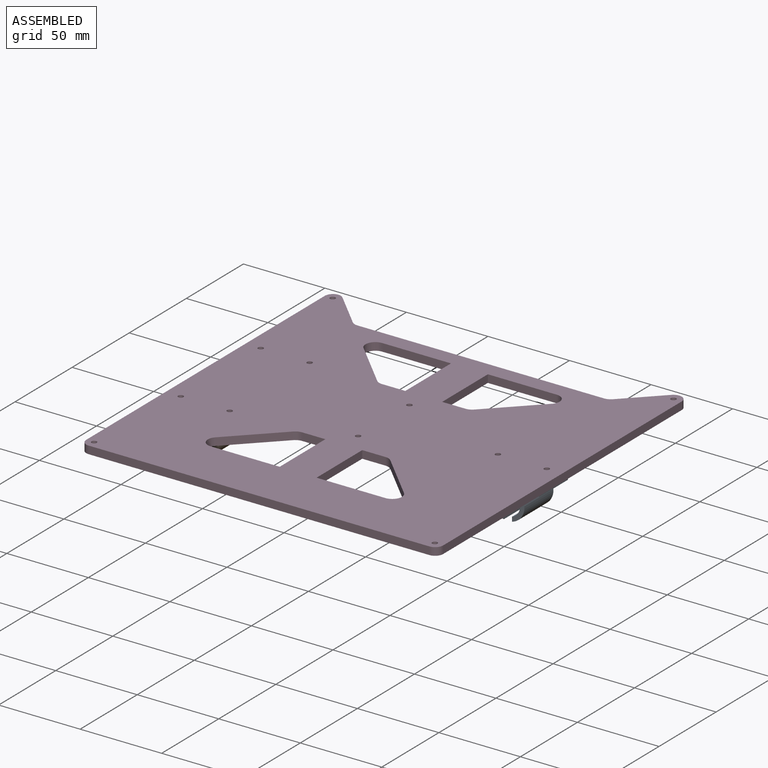
[diagram: assembled view]
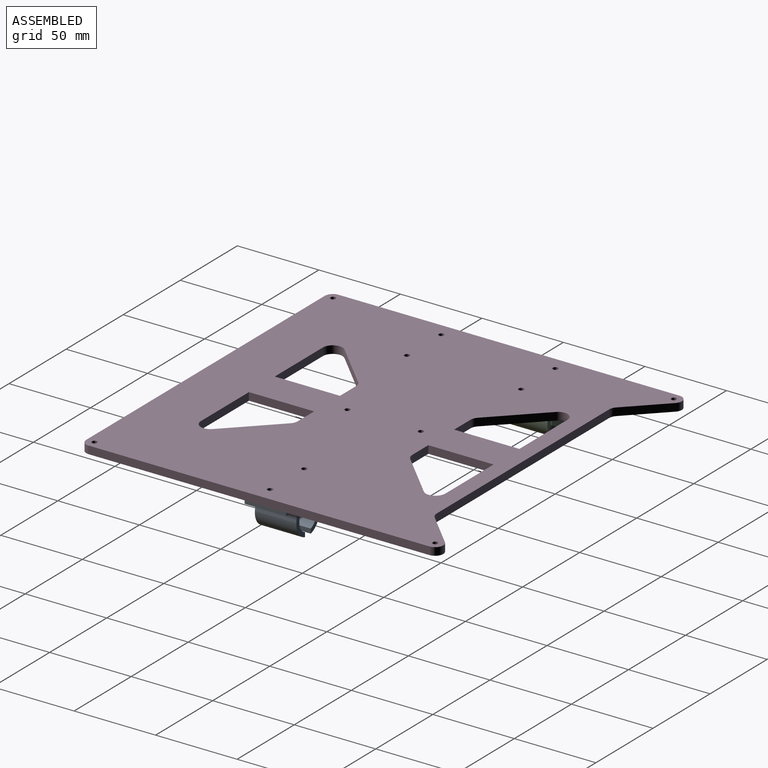
[diagram: assembled view, second angle]
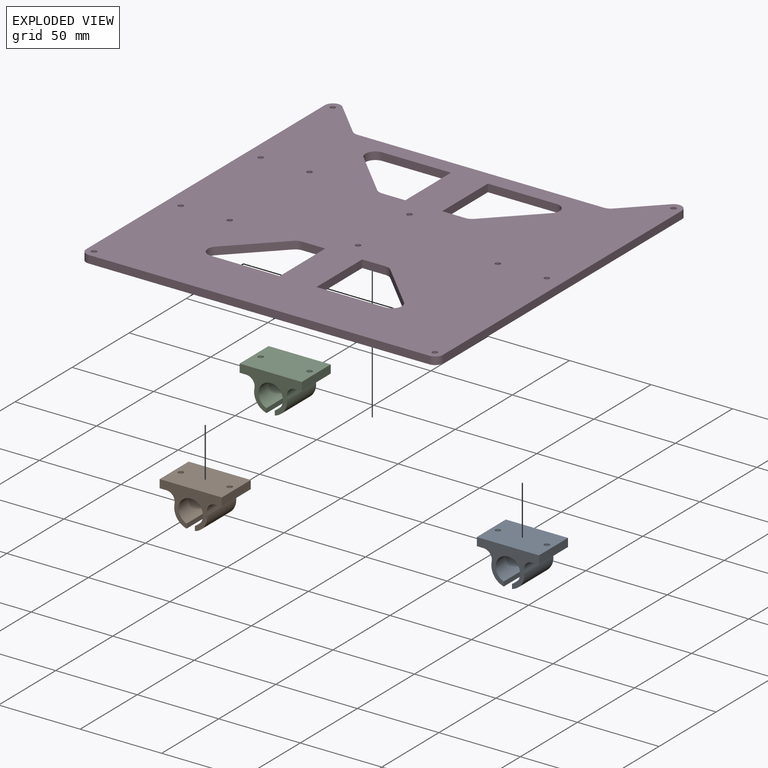
[diagram: exploded view]
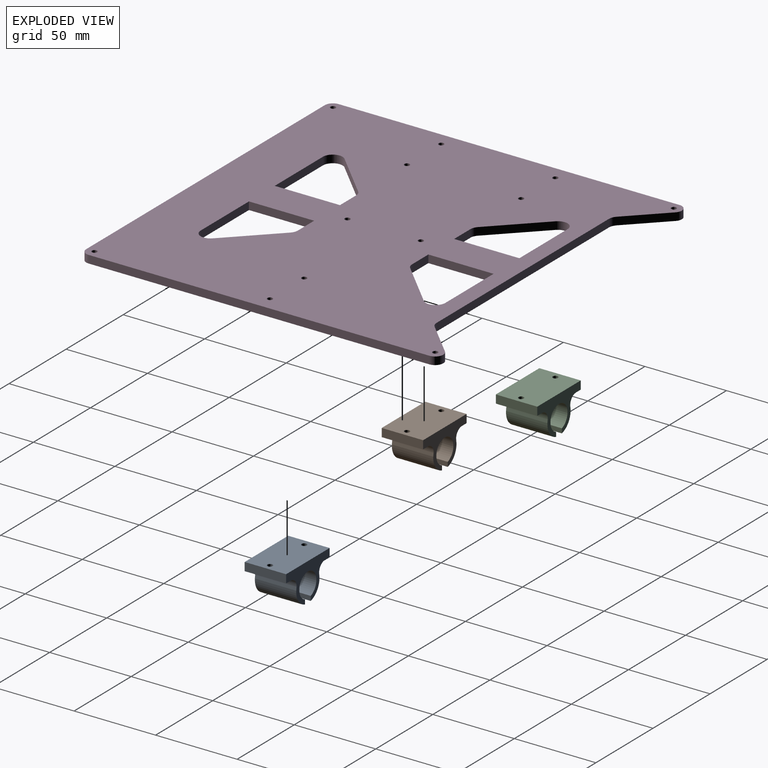
[diagram: exploded view, second angle]
ASSEMBLY  parts=4 mates=3
PART A: 18 faces, bbox 38.1x25.4x23 mm
  f0: cylinder r=10.16mm len=25.4mm, axis (0,1,0), area 392.1mm2, adj f2,f12,f13,f16
  f1: cylinder r=5.08mm len=25.4mm, axis (0,1,0), area 217.5mm2, adj f6,f7,f12,f13,f14
  f2: cylinder r=5.08mm len=25.4mm, axis (0,1,0), area 217.5mm2, adj f0,f8,f12,f13,f15
  f3: cylinder r=1.6mm len=5.08mm, axis (0,0,1), area 51.1mm2, adj f8,f11
  f4: cylinder r=1.6mm len=5.08mm, axis (0,0,1), area 51.1mm2, adj f6,f11
  f5: plane 25.4x5.08mm, normal (-1,0,0), area 129mm2, adj f6,f11,f12,f13
  f6: plane 25.4x6.72mm, normal (0,0,-1), area 107.4mm2, adj f1,f4,f5,f12,f13,f14
  f7: cylinder r=10.16mm len=25.4mm, axis (0,1,0), area 392.1mm2, adj f1,f12,f13,f17
  f8: plane 25.4x6.72mm, normal (0,0,-1), area 107.4mm2, adj f2,f3,f9,f12,f13,f15
  f9: plane 25.4x5.08mm, normal (1,0,0), area 129mm2, adj f8,f11,f12,f13
  f10: cylinder r=7.49mm len=25.4mm, axis (0,1,0), area 1064.2mm2, adj f12,f13,f16,f17
  f11: plane 38.1x25.4mm, normal (0,0,1), area 951.7mm2, adj f3,f4,f5,f9,f12,f13
  f12: plane 38.1x23.05mm, normal (0,-1,0), area 337.8mm2, adj f0,f1,f2,f5,f6,f7,f8,f9
  f13: plane 38.1x23.05mm, normal (0,1,0), area 337.8mm2, adj f0,f1,f2,f5,f6,f7,f8,f9
  f14: cylinder r=2.67mm len=5.33mm, axis (0,0,1), area 2.9mm2, adj f1,f6
  f15: cylinder r=2.67mm len=5.33mm, axis (0,0,1), area 2.9mm2, adj f2,f8
  f16: plane 25.4x2.79mm, normal (-1,0,0), area 70.8mm2, adj f0,f10,f12,f13
  f17: plane 25.4x2.79mm, normal (1,0,0), area 70.8mm2, adj f7,f10,f12,f13
PART B: same geometry as A
PART C: same geometry as A
PART D: 53 faces, bbox 218.9x218.9x4.8 mm
  f0: plane 4.78x0.15mm, normal (0,1,0), area 0.7mm2, adj f1,f2,f11,f16
  f1: plane 218.9x218.9mm, normal (0,0,1), area 37700.7mm2, adj f0,f3,f4,f5,f6,f7,f8,f9
  f2: plane 218.9x218.9mm, normal (0,0,-1), area 37700.7mm2, adj f0,f3,f4,f5,f6,f7,f8,f9
  f3: plane 208.99x4.78mm, normal (-1,0,0), area 998mm2, adj f1,f2,f12,f14
  f4: plane 208.99x4.78mm, normal (0,-1,0), area 998mm2, adj f1,f2,f14,f15
  f5: plane 208.99x4.78mm, normal (1,0,0), area 998mm2, adj f1,f2,f15,f16
  f6: plane 21.22x21.22mm, normal (-0.71,0.71,0), area 143.3mm2, adj f1,f2,f10,f11
  f7: plane 21.22x21.22mm, normal (0.71,0.71,0), area 143.3mm2, adj f1,f2,f8,f13
  f8: cylinder r=6mm len=4.78mm, axis (0,0,1), area 22.5mm2, adj f1,f2,f7,f9
  f9: plane 151.03x4.78mm, normal (0,1,0), area 721.2mm2, adj f1,f2,f8,f10
  f10: cylinder r=6mm len=4.78mm, axis (0,0,1), area 22.5mm2, adj f1,f2,f6,f9
  f11: cylinder r=4.95mm len=4.78mm, axis (0,0,1), area 18.6mm2, adj f0,f1,f2,f6
  f12: cylinder r=4.95mm len=4.95mm, axis (0,0,1), area 36.8mm2, adj f1,f2,f3,f13
  f13: cylinder r=4.95mm len=4.78mm, axis (0,0,1), area 18.3mm2, adj f1,f2,f7,f12
  f14: cylinder r=4.95mm len=4.95mm, axis (0,0,-1), area 37.2mm2, adj f1,f2,f3,f4
  f15: cylinder r=4.95mm len=4.95mm, axis (0,0,1), area 37.2mm2, adj f1,f2,f4,f5
  f16: cylinder r=4.95mm len=4.95mm, axis (0,0,-1), area 37.2mm2, adj f0,f1,f2,f5
  f17: cylinder r=1.6mm len=4.78mm, axis (0,0,1), area 48mm2, adj f1,f2
  f18: cylinder r=1.6mm len=4.78mm, axis (0,0,1), area 48mm2, adj f1,f2
  f19: cylinder r=1.6mm len=4.78mm, axis (0,0,1), area 48mm2, adj f1,f2
  f20: cylinder r=1.6mm len=4.78mm, axis (0,0,1), area 48mm2, adj f1,f2
  f21: cylinder r=1.6mm len=4.78mm, axis (0,0,1), area 48mm2, adj f1,f2
  f22: cylinder r=1.6mm len=4.78mm, axis (0,0,1), area 48mm2, adj f1,f2
  f23: cylinder r=1.6mm len=4.78mm, axis (0,0,1), area 48mm2, adj f1,f2
  f24: cylinder r=1.6mm len=4.78mm, axis (0,0,1), area 48mm2, adj f1,f2
  f25: cylinder r=1.6mm len=4.78mm, axis (0,0,1), area 48mm2, adj f1,f2
  f26: cylinder r=1.6mm len=4.78mm, axis (0,0,1), area 48mm2, adj f1,f2
  f27: cylinder r=1.6mm len=4.78mm, axis (0,0,1), area 48mm2, adj f1,f2
  f28: cylinder r=1.6mm len=4.78mm, axis (0,0,1), area 48mm2, adj f1,f2
  f29: plane 14.21x4.78mm, normal (0,1,0), area 67.9mm2, adj f1,f2,f30,f34
  f30: cylinder r=6mm len=4.78mm, axis (0,0,1), area 22.5mm2, adj f1,f2,f29,f31
  f31: plane 28x28mm, normal (-0.71,0.71,0), area 189.1mm2, adj f1,f2,f30,f32
  f32: cylinder r=6mm len=10.24mm, axis (0,0,1), area 67.5mm2, adj f1,f2,f31,f33
  f33: plane 42.21x4.78mm, normal (0,-1,0), area 201.6mm2, adj f1,f2,f32,f34
  f34: plane 40x4.78mm, normal (1,0,0), area 191mm2, adj f1,f2,f29,f33
  f35: plane 42.21x4.78mm, normal (0,-1,0), area 201.6mm2, adj f1,f2,f36,f40
  f36: cylinder r=6mm len=10.24mm, axis (0,0,1), area 67.5mm2, adj f1,f2,f35,f37
  f37: plane 28x28mm, normal (0.71,0.71,0), area 189.1mm2, adj f1,f2,f36,f38
  f38: cylinder r=6mm len=4.78mm, axis (0,0,1), area 22.5mm2, adj f1,f2,f37,f39
  f39: plane 14.21x4.78mm, normal (0,1,0), area 67.9mm2, adj f1,f2,f38,f40
  f40: plane 40x4.78mm, normal (-1,0,0), area 191mm2, adj f1,f2,f35,f39
  f41: plane 14.21x4.78mm, normal (0,-1,0), area 67.9mm2, adj f1,f2,f42,f46
  f42: plane 40x4.78mm, normal (1,0,0), area 191mm2, adj f1,f2,f41,f43
  f43: plane 42.21x4.78mm, normal (0,1,0), area 201.6mm2, adj f1,f2,f42,f44
  f44: cylinder r=6mm len=10.24mm, axis (0,0,1), area 67.5mm2, adj f1,f2,f43,f45
  f45: plane 28x28mm, normal (-0.71,-0.71,0), area 189.1mm2, adj f1,f2,f44,f46
  f46: cylinder r=6mm len=4.78mm, axis (0,0,1), area 22.5mm2, adj f1,f2,f41,f45
  f47: plane 42.21x4.78mm, normal (0,1,0), area 201.6mm2, adj f1,f2,f48,f52
  f48: plane 40x4.78mm, normal (-1,0,0), area 191mm2, adj f1,f2,f47,f49
  f49: plane 14.21x4.78mm, normal (0,-1,0), area 67.9mm2, adj f1,f2,f48,f50
  f50: cylinder r=6mm len=4.78mm, axis (0,0,1), area 22.5mm2, adj f1,f2,f49,f51
  f51: plane 28x28mm, normal (0.71,-0.71,0), area 189.1mm2, adj f1,f2,f50,f52
  f52: cylinder r=6mm len=10.24mm, axis (0,0,1), area 67.5mm2, adj f1,f2,f47,f51
PLACE A t=(-14.61,115.44,220.42)mm
PLACE B t=(-184.61,80.44,220.42)mm
PLACE C t=(-184.61,150.44,220.42)mm
PLACE D t=(-105.59,115.42,233.63)mm fixed
MATE fastened A.f3 <-> D.f26  axis (0,0,1) through (0.39,115.44,233.63)mm
MATE fastened C.f4 <-> D.f17  axis (0,0,1) through (-199.61,150.44,233.63)mm
MATE fastened B.f3 <-> D.f22  axis (0,0,1) through (-169.61,80.44,233.63)mm
